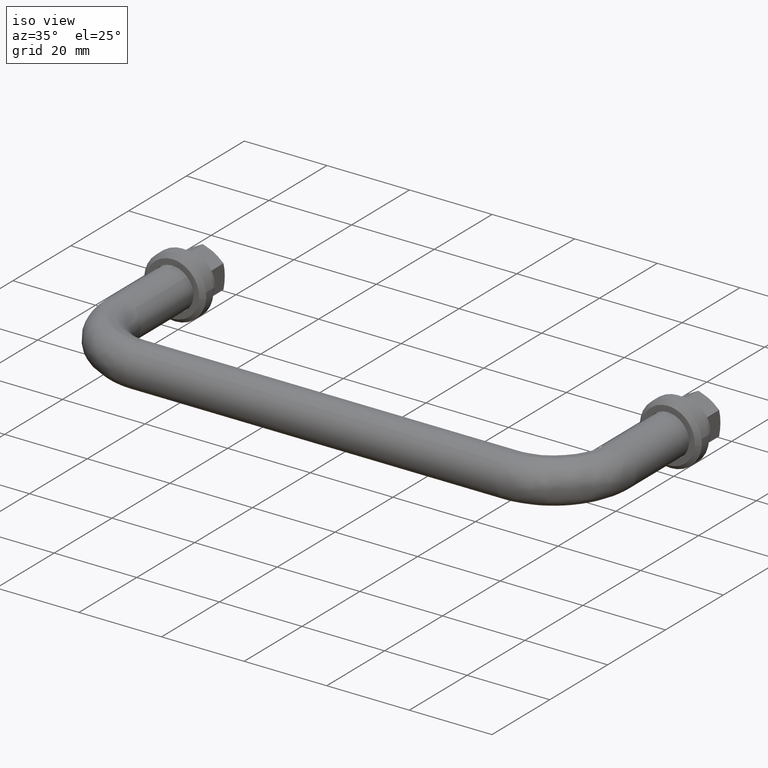
[diagram: clean part render]
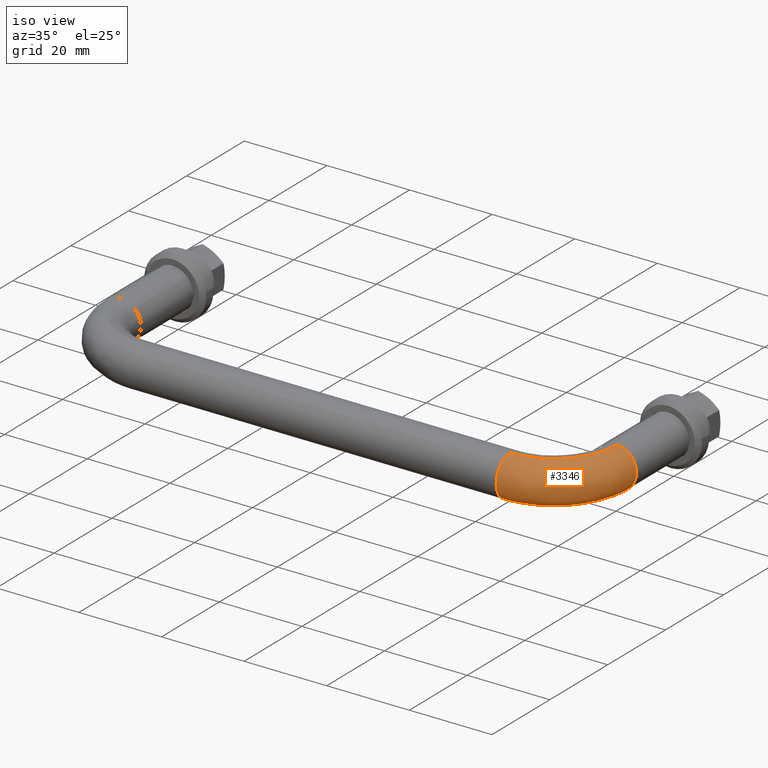
[diagram: same view with one face highlighted and labeled with its STEP entity id]
A machine part, iso view. The second image highlights one B-rep face of the part: STEP entity #3346.
In plain terms, the highlighted face is a freeform B-spline surface patch.
Its self-contained STEP definition (entity closure, byte-faithful):
#2591=CARTESIAN_POINT('',(119.937169799536900,-20.000000000594721,-4.999605221005929));
#2592=VERTEX_POINT('',#2591);
#2593=CARTESIAN_POINT('',(123.112570831137400,-19.999999999999869,-3.913042655165403));
#2594=VERTEX_POINT('',#2593);
#2595=CARTESIAN_POINT('',(119.937169799536850,-20.000000000594724,-4.999605221005929));
#2596=CARTESIAN_POINT('',(119.968583658994090,-19.999999999999996,-5.0));
#2597=CARTESIAN_POINT('',(120.0,-20.0,-5.0));
#2598=CARTESIAN_POINT('',(121.746076481151960,-20.0,-5.0));
#2599=CARTESIAN_POINT('',(123.112570831137380,-19.999999999999865,-3.913042655165403));
#2607=(BOUNDED_CURVE()B_SPLINE_CURVE(2,(#2595,#2596,#2597,#2598,#2599),.UNSPECIFIED.,.F.,.U.)B_SPLINE_CURVE_WITH_KNOTS((3,2,3),(0.247784295848113,0.250000000000000,0.357863786403069),.UNSPECIFIED.)CURVE()GEOMETRIC_REPRESENTATION_ITEM()RATIONAL_B_SPLINE_CURVE((0.994854295474578,0.997404141116062,1.0,0.873629713627994,0.856305647871385))REPRESENTATION_ITEM(''));
#2608=EDGE_CURVE('',#2592,#2594,#2607,.T.);
#2705=CARTESIAN_POINT('',(125.0,-20.0,0.0));
#2706=VERTEX_POINT('',#2705);
#2707=CARTESIAN_POINT('',(123.112570831137380,-19.999999999999865,-3.913042655165403));
#2708=CARTESIAN_POINT('',(125.000000000000060,-20.0,-2.411715556397324));
#2709=CARTESIAN_POINT('',(125.0,-20.0,0.0));
#2717=(BOUNDED_CURVE()B_SPLINE_CURVE(2,(#2707,#2708,#2709),.UNSPECIFIED.,.F.,.U.)B_SPLINE_CURVE_WITH_KNOTS((3,3),(0.357863786403069,0.500000000000000),.UNSPECIFIED.)CURVE()GEOMETRIC_REPRESENTATION_ITEM()RATIONAL_B_SPLINE_CURVE((0.856305647871385,0.833477067558554,1.0))REPRESENTATION_ITEM(''));
#2718=EDGE_CURVE('',#2594,#2706,#2717,.T.);
#2752=CARTESIAN_POINT('',(120.348666261161990,-20.000000000619941,4.987828368972547));
#2753=VERTEX_POINT('',#2752);
#2769=CARTESIAN_POINT('',(125.0,-20.0,0.0));
#2770=CARTESIAN_POINT('',(124.999999999999990,-19.999999999999996,4.662684230176913));
#2771=CARTESIAN_POINT('',(120.348666261161950,-20.000000000619941,4.987828368972547));
#2779=(BOUNDED_CURVE()B_SPLINE_CURVE(2,(#2769,#2770,#2771),.UNSPECIFIED.,.F.,.U.)B_SPLINE_CURVE_WITH_KNOTS((3,3),(0.500000000000000,0.737833686308617),.UNSPECIFIED.)CURVE()GEOMETRIC_REPRESENTATION_ITEM()RATIONAL_B_SPLINE_CURVE((1.0,0.721360504299201,0.972879875907963))REPRESENTATION_ITEM(''));
#2780=EDGE_CURVE('',#2706,#2753,#2779,.T.);
#2811=CARTESIAN_POINT('',(105.0,-40.0,0.0));
#2812=VERTEX_POINT('',#2811);
#2813=CARTESIAN_POINT('',(105.000000000448300,-38.040222707736262,3.969514564947689));
#2814=VERTEX_POINT('',#2813);
#2815=CARTESIAN_POINT('',(105.0,-40.0,0.0));
#2816=CARTESIAN_POINT('',(105.000000000000010,-40.0,2.468535205870909));
#2817=CARTESIAN_POINT('',(105.000000000448340,-38.040222707736255,3.969514564947689));
#2825=(BOUNDED_CURVE()B_SPLINE_CURVE(2,(#2815,#2816,#2817),.UNSPECIFIED.,.F.,.U.)B_SPLINE_CURVE_WITH_KNOTS((3,3),(0.500000000000000,0.644916377166535),.UNSPECIFIED.)CURVE()GEOMETRIC_REPRESENTATION_ITEM()RATIONAL_B_SPLINE_CURVE((1.0,0.830219903331637,0.857271138856580))REPRESENTATION_ITEM(''));
#2826=EDGE_CURVE('',#2812,#2814,#2825,.T.);
#2919=CARTESIAN_POINT('',(105.000000127957610,-34.937169908600652,-4.999605222376536));
#2920=VERTEX_POINT('',#2919);
#2934=CARTESIAN_POINT('',(105.000000127957580,-34.937169908600652,-4.999605222376536));
#2935=CARTESIAN_POINT('',(105.000000000000010,-34.968583768070758,-5.0));
#2936=CARTESIAN_POINT('',(105.0,-35.0,-5.0));
#2937=CARTESIAN_POINT('',(105.0,-39.999999999999993,-5.000000000000001));
#2938=CARTESIAN_POINT('',(105.0,-40.0,0.0));
#2946=(BOUNDED_CURVE()B_SPLINE_CURVE(2,(#2934,#2935,#2936,#2937,#2938),.UNSPECIFIED.,.F.,.U.)B_SPLINE_CURVE_WITH_KNOTS((3,2,3),(0.247784303521010,0.250000000000000,0.500000000000000),.UNSPECIFIED.)CURVE()GEOMETRIC_REPRESENTATION_ITEM()RATIONAL_B_SPLINE_CURVE((0.994854313134611,0.997404150105420,1.0,0.707106781186548,1.0))REPRESENTATION_ITEM(''));
#2947=EDGE_CURVE('',#2920,#2812,#2946,.T.);
#2966=CARTESIAN_POINT('',(105.000000001064090,-35.348666263059869,4.987828368839876));
#2967=VERTEX_POINT('',#2966);
#2968=CARTESIAN_POINT('',(105.000000000448340,-38.040222707736262,3.969514564947690));
#2969=CARTESIAN_POINT('',(105.000000000721220,-36.847439022908283,4.883059025046389));
#2970=CARTESIAN_POINT('',(105.000000001064140,-35.348666263059862,4.987828368839876));
#2978=(BOUNDED_CURVE()B_SPLINE_CURVE(2,(#2968,#2969,#2970),.UNSPECIFIED.,.F.,.U.)B_SPLINE_CURVE_WITH_KNOTS((3,3),(0.644916377166534,0.737833686177733),.UNSPECIFIED.)CURVE()GEOMETRIC_REPRESENTATION_ITEM()RATIONAL_B_SPLINE_CURVE((0.857271138856580,0.874615817626166,0.972879875631132))REPRESENTATION_ITEM(''));
#2979=EDGE_CURVE('',#2814,#2967,#2978,.T.);
#3275=CARTESIAN_POINT('',(105.000000127957620,-34.937169908600652,-4.999605222376536));
#3276=CARTESIAN_POINT('',(119.937169799393760,-34.937169544668009,-4.999605221019078));
#3277=CARTESIAN_POINT('',(119.937169799536920,-20.000000000594724,-4.999605221005929));
#3285=(BOUNDED_CURVE()B_SPLINE_CURVE(2,(#3275,#3276,#3277),.UNSPECIFIED.,.F.,.U.)B_SPLINE_CURVE_WITH_KNOTS((3,3),(-1.734750773855825,-0.265249208424343),.UNSPECIFIED.)CURVE()GEOMETRIC_REPRESENTATION_ITEM()RATIONAL_B_SPLINE_CURVE((0.889029717267328,0.628638949386523,0.889029723547118))REPRESENTATION_ITEM(''));
#3286=EDGE_CURVE('',#2920,#2592,#3285,.T.);
#3291=CARTESIAN_POINT('',(105.000000001064090,-35.348666263059876,4.987828368839876));
#3292=CARTESIAN_POINT('',(120.348666256637300,-35.348666255749016,4.987828369202159));
#3293=CARTESIAN_POINT('',(120.348666261161970,-20.000000000619941,4.987828368972548));
#3301=(BOUNDED_CURVE()B_SPLINE_CURVE(2,(#3291,#3292,#3293),.UNSPECIFIED.,.F.,.U.)B_SPLINE_CURVE_WITH_KNOTS((3,3),(-1.734750791514324,-0.265249208425538),.UNSPECIFIED.)CURVE()GEOMETRIC_REPRESENTATION_ITEM()RATIONAL_B_SPLINE_CURVE((0.869031711825349,0.614498216572645,0.869031711846182))REPRESENTATION_ITEM(''));
#3302=EDGE_CURVE('',#2967,#2753,#3301,.T.);
#3307=CARTESIAN_POINT('',(103.966248808223570,-34.830197076472295,-4.998713123331619));
#3308=CARTESIAN_POINT('',(121.018864228585930,-36.018863782842047,-4.998713123331619));
#3309=CARTESIAN_POINT('',(119.830197047706960,-18.966248395555741,-4.998713123331618));
#3310=CARTESIAN_POINT('',(103.963787967534780,-34.865500302895384,-4.999157856648588));
#3311=CARTESIAN_POINT('',(121.056997072538490,-36.056996625733483,-4.999157856648589));
#3312=CARTESIAN_POINT('',(119.865500274061460,-18.963787553884607,-4.999157856648587));
#3313=CARTESIAN_POINT('',(103.613654533152500,-39.888515392269404,-5.062435420435841));
#3314=CARTESIAN_POINT('',(126.482615917649700,-41.482615319870412,-5.062435420435840));
#3315=CARTESIAN_POINT('',(124.888515353692700,-18.613653979730977,-5.062435420435842));
#3316=CARTESIAN_POINT('',(103.609285503454960,-39.951193502788577,-0.062830199416764));
#3317=CARTESIAN_POINT('',(126.550317792232600,-41.550317192569409,-0.062830199416764));
#3318=CARTESIAN_POINT('',(124.951193464090280,-18.609284948289336,-0.062830199416764));
#3319=CARTESIAN_POINT('',(103.605159595231070,-40.010383792063834,4.658564189198486));
#3320=CARTESIAN_POINT('',(126.614252290382620,-41.614251688940413,4.658564189198486));
#3321=CARTESIAN_POINT('',(125.010383753250710,-18.605159038418403,4.658564189198486));
#3322=CARTESIAN_POINT('',(103.935232958808330,-35.275150526568865,4.990376381400668));
#3323=CARTESIAN_POINT('',(121.499481503486920,-36.499481044369219,4.990376381400667));
#3324=CARTESIAN_POINT('',(120.275150496940470,-18.935232533759137,4.990376381400667));
#3325=CARTESIAN_POINT('',(103.937753540253500,-35.238990259111652,4.992910241285254));
#3326=CARTESIAN_POINT('',(121.460422925109310,-36.460422467078494,4.992910241285253));
#3327=CARTESIAN_POINT('',(120.238990229553390,-18.937753116210494,4.992910241285254));
#3335=(BOUNDED_SURFACE()B_SPLINE_SURFACE(2,2,((#3307,#3310,#3313,#3316,#3319,#3322,#3325),(#3308,#3311,#3314,#3317,#3320,#3323,#3326),(#3309,#3312,#3315,#3318,#3321,#3324,#3327)),.UNSPECIFIED.,.F.,.F.,.U.)B_SPLINE_SURFACE_WITH_KNOTS((3,3),(3,1,2,1,3),(0.0,36.446758903065437),(0.0,0.083665231076549,8.367936478538480,16.320836876101929,16.404761880214380),.UNSPECIFIED.)GEOMETRIC_REPRESENTATION_ITEM()RATIONAL_B_SPLINE_SURFACE(((0.921763198190536,0.919052646715735,0.647951709431553,0.916342095240933,0.658687324863928,0.898231163705193,0.900732613799613),(0.604884031893161,0.603105300318771,0.425202094466791,0.601326568744382,0.432247073437895,0.589441723146093,0.591083237172323),(0.921763209876124,0.919052658366959,0.647951717645915,0.916342106857795,0.658687333214390,0.898231175092455,0.900732625218587)))REPRESENTATION_ITEM('')SURFACE());
#3336=ORIENTED_EDGE('',*,*,#2780,.T.);
#3337=ORIENTED_EDGE('',*,*,#3302,.F.);
#3338=ORIENTED_EDGE('',*,*,#2979,.F.);
#3339=ORIENTED_EDGE('',*,*,#2826,.F.);
#3340=ORIENTED_EDGE('',*,*,#2947,.F.);
#3341=ORIENTED_EDGE('',*,*,#3286,.T.);
#3342=ORIENTED_EDGE('',*,*,#2608,.T.);
#3343=ORIENTED_EDGE('',*,*,#2718,.T.);
#3344=EDGE_LOOP('',(#3336,#3337,#3338,#3339,#3340,#3341,#3342,#3343));
#3345=FACE_OUTER_BOUND('',#3344,.T.);
#3346=ADVANCED_FACE('',(#3345),#3335,.T.);